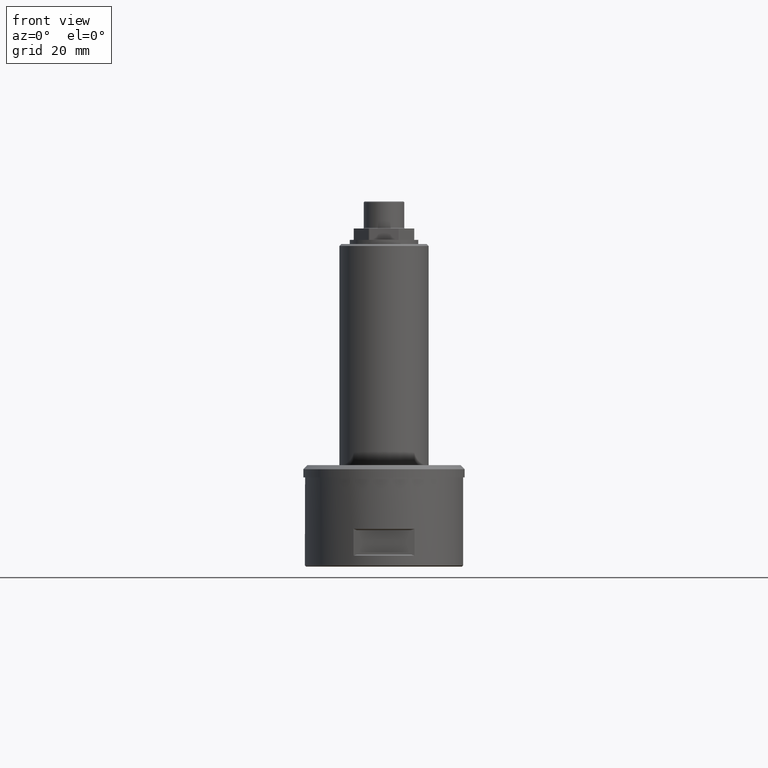
[diagram: clean part render]
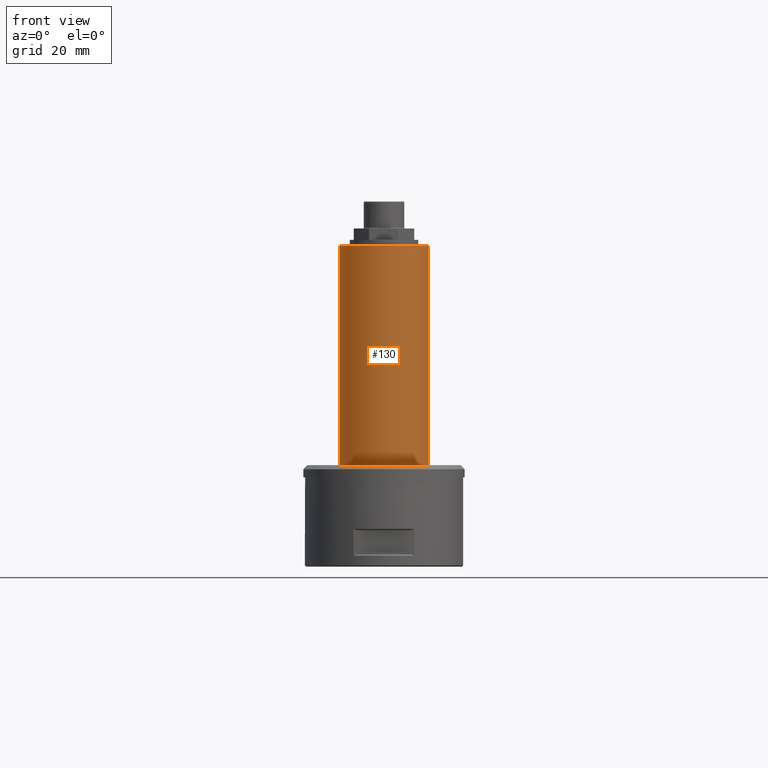
[diagram: same view with one face highlighted and labeled with its STEP entity id]
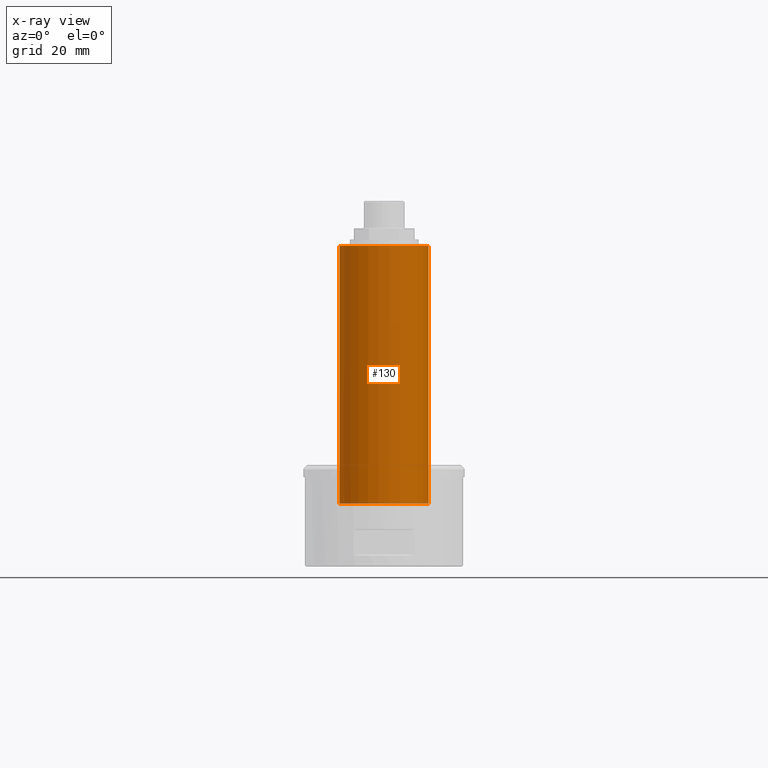
[diagram: x-ray of the same camera — body ghosted, the highlighted face saturated]
A machine part, front view. The second image highlights one B-rep face of the part: STEP entity #130.
The next image is the same camera in x-ray: the body ghosted, the highlighted face saturated — about 0% of this face is hidden behind the body in this view.
In plain terms, the highlighted cylindrical surface (bore or boss wall) has radius 11 mm, axis along (0, 0, 1).
Its self-contained STEP definition (entity closure, byte-faithful):
#50=B_SPLINE_CURVE_WITH_KNOTS('',3,(#1412,#1413,#1414,#1415,#1416,#1417,
#1418,#1419,#1420,#1421,#1422,#1423,#1424,#1425,#1426,#1427,#1428,#1429,
#1430,#1431,#1432,#1433,#1434,#1435,#1436,#1437,#1438,#1439,#1440,#1441,
#1442,#1443,#1444,#1445,#1446,#1447,#1448,#1449,#1450,#1451,#1452,#1453,
#1454,#1455,#1456,#1457,#1458,#1459,#1460,#1461,#1462,#1463,#1464,#1465,
#1466,#1467,#1468,#1469),.UNSPECIFIED.,.T.,.F.,(1,3,3,3,3,3,3,3,3,3,3,3,
3,3,3,3,3,3,3,3,3,1),(-0.0334760659607021,0.,0.0569276184208162,0.11388798171723,
0.170189178404947,0.223994773815214,0.275023318518955,0.32479447673683,
0.375435942673917,0.428444094596675,0.484019015101014,0.541000746772207,
0.597629402742916,0.652691800182208,0.705997861087888,0.758026453272304,
0.809447894307852,0.860920961920237,0.913080990616137,0.966523934039298,
1.,1.05692761842082),.UNSPECIFIED.);
#51=B_SPLINE_CURVE_WITH_KNOTS('',3,(#1471,#1472,#1473,#1474,#1475,#1476,
#1477,#1478,#1479,#1480,#1481,#1482,#1483,#1484,#1485,#1486,#1487,#1488,
#1489,#1490,#1491,#1492,#1493,#1494,#1495,#1496,#1497,#1498,#1499,#1500,
#1501,#1502,#1503,#1504,#1505,#1506,#1507,#1508,#1509,#1510,#1511,#1512,
#1513,#1514,#1515,#1516,#1517,#1518,#1519,#1520,#1521,#1522,#1523,#1524,
#1525,#1526,#1527,#1528),.UNSPECIFIED.,.T.,.F.,(1,3,3,3,3,3,3,3,3,3,3,3,
3,3,3,3,3,3,3,3,3,1),(-0.0368720802815017,0.,0.0557742989657597,0.11163351685579,
0.166177446941804,0.219065034009753,0.270861475775484,0.322242468032284,
0.37385818799038,0.426338903139108,0.480247896041718,0.535857703218907,
0.592750324818179,0.649530104049342,0.704312651862768,0.756186565040042,
0.806141649324129,0.856262775636491,0.908363747585336,0.963127919718498,
1.,1.05577429896576),.UNSPECIFIED.);
#75=CYLINDRICAL_SURFACE('',#973,11.);
#130=ADVANCED_FACE('',(#306,#307,#308,#309),#75,.T.);
#306=FACE_BOUND('',#369,.T.);
#307=FACE_BOUND('',#370,.T.);
#308=FACE_BOUND('',#371,.T.);
#309=FACE_BOUND('',#372,.T.);
#369=EDGE_LOOP('',(#489));
#370=EDGE_LOOP('',(#490));
#371=EDGE_LOOP('',(#491));
#372=EDGE_LOOP('',(#492));
#489=ORIENTED_EDGE('',*,*,#808,.T.);
#490=ORIENTED_EDGE('',*,*,#809,.T.);
#491=ORIENTED_EDGE('',*,*,#810,.F.);
#492=ORIENTED_EDGE('',*,*,#811,.F.);
#715=VERTEX_POINT('',#1409);
#716=VERTEX_POINT('',#1411);
#717=VERTEX_POINT('',#1470);
#718=VERTEX_POINT('',#1529);
#808=EDGE_CURVE('',#715,#715,#910,.T.);
#809=EDGE_CURVE('',#716,#716,#911,.T.);
#810=EDGE_CURVE('',#717,#717,#50,.T.);
#811=EDGE_CURVE('',#718,#718,#51,.T.);
#910=CIRCLE('',#971,11.);
#911=CIRCLE('',#972,11.0000000000001);
#971=AXIS2_PLACEMENT_3D('',#1408,#1124,#1125);
#972=AXIS2_PLACEMENT_3D('',#1410,#1126,#1127);
#973=AXIS2_PLACEMENT_3D('',#1530,#1128,#1129);
#1124=DIRECTION('',(0.,0.,-1.));
#1125=DIRECTION('',(-1.,0.,0.));
#1126=DIRECTION('',(0.,0.,1.));
#1127=DIRECTION('',(1.,0.,0.));
#1128=DIRECTION('',(0.,0.,1.));
#1129=DIRECTION('',(1.,0.,0.));
#1408=CARTESIAN_POINT('',(0.,0.,79.));
#1409=CARTESIAN_POINT('',(-11.,0.,79.));
#1410=CARTESIAN_POINT('',(0.,0.,15.5));
#1411=CARTESIAN_POINT('',(11.0000000000001,0.,15.5));
#1412=CARTESIAN_POINT('',(-2.99999999999991,10.5830052442584,17.8999999999996));
#1413=CARTESIAN_POINT('',(-3.06981681712979,10.5632140368882,17.8999999999996));
#1414=CARTESIAN_POINT('',(-3.14038450659972,10.5424227737473,17.9124970988472));
#1415=CARTESIAN_POINT('',(-3.20591448775793,10.5224575217571,17.9364405765748));
#1416=CARTESIAN_POINT('',(-3.27146261720385,10.5024867404637,17.9603906853607));
#1417=CARTESIAN_POINT('',(-3.33382981085157,10.4827847092571,17.9964888354275));
#1418=CARTESIAN_POINT('',(-3.3876192775582,10.4653731720525,18.0420138695711));
#1419=CARTESIAN_POINT('',(-3.44075567997196,10.4481730303855,18.0869861788774));
#1420=CARTESIAN_POINT('',(-3.48705359081985,10.43272799059,18.1425344552966));
#1421=CARTESIAN_POINT('',(-3.5219399223933,10.4209375385832,18.2040629840455));
#1422=CARTESIAN_POINT('',(-3.55529059017035,10.4096660912832,18.262883084313));
#1423=CARTESIAN_POINT('',(-3.57915482046363,10.4014329403698,18.3289382027011));
#1424=CARTESIAN_POINT('',(-3.59097724228668,10.39734977989,18.3963375714194));
#1425=CARTESIAN_POINT('',(-3.60220237963041,10.39347290611,18.4603318343604));
#1426=CARTESIAN_POINT('',(-3.60289005001189,10.3932330618097,18.5273519849324));
#1427=CARTESIAN_POINT('',(-3.59296868398482,10.396661773661,18.5915867884212));
#1428=CARTESIAN_POINT('',(-3.58328137018419,10.4000095997109,18.6543062462681));
#1429=CARTESIAN_POINT('',(-3.56326033680526,10.4069246310301,18.716062895263));
#1430=CARTESIAN_POINT('',(-3.53478046430455,10.4165890323642,18.7720475234187));
#1431=CARTESIAN_POINT('',(-3.5057920601981,10.4264259995527,18.8290318032705));
#1432=CARTESIAN_POINT('',(-3.46732907570817,10.4393411650476,18.8815408372879));
#1433=CARTESIAN_POINT('',(-3.42260264746866,10.453984461321,18.9259190091467));
#1434=CARTESIAN_POINT('',(-3.37580324197967,10.4693064440271,18.9723540172935));
#1435=CARTESIAN_POINT('',(-3.32095149567916,10.4868989700489,19.0111162295878));
#1436=CARTESIAN_POINT('',(-3.26232257871943,10.5051059676891,19.0396173317213));
#1437=CARTESIAN_POINT('',(-3.20090536269367,10.524178861497,19.0694739014394));
#1438=CARTESIAN_POINT('',(-3.1336983167243,10.5444253513799,19.088868258931));
#1439=CARTESIAN_POINT('',(-3.06598618430007,10.564077277154,19.0963604811534));
#1440=CARTESIAN_POINT('',(-2.99661772046592,10.5842099159223,19.1040359733831));
#1441=CARTESIAN_POINT('',(-2.92478068762943,10.6042751642352,19.0994009585023));
#1442=CARTESIAN_POINT('',(-2.85653800704422,10.622626352005,19.0825964783426));
#1443=CARTESIAN_POINT('',(-2.78874380432905,10.6408569392719,19.0659024340187));
#1444=CARTESIAN_POINT('',(-2.72256330115455,10.6579214838166,19.0366771898524));
#1445=CARTESIAN_POINT('',(-2.66401663073763,10.6725355652325,18.9971068050018));
#1446=CARTESIAN_POINT('',(-2.60707805025483,10.6867482445354,18.9586232921649));
#1447=CARTESIAN_POINT('',(-2.55573615457011,10.6990643438209,18.9092216508164));
#1448=CARTESIAN_POINT('',(-2.51483547133773,10.7086695042896,18.8530090368927));
#1449=CARTESIAN_POINT('',(-2.47521965706406,10.7179729247492,18.798562306495));
#1450=CARTESIAN_POINT('',(-2.44427888225215,10.725012553923,18.7361680065076));
#1451=CARTESIAN_POINT('',(-2.42492917387903,10.7293857467084,18.6711535712293));
#1452=CARTESIAN_POINT('',(-2.40603383409633,10.733656248466,18.6076658006813));
#1453=CARTESIAN_POINT('',(-2.39766002012662,10.7355128144675,18.5399010011442));
#1454=CARTESIAN_POINT('',(-2.40058147454186,10.7348595046273,18.4735910746605));
#1455=CARTESIAN_POINT('',(-2.40346989220308,10.7342135826266,18.4080310023314));
#1456=CARTESIAN_POINT('',(-2.41746976120564,10.7310967887802,18.3420888473413));
#1457=CARTESIAN_POINT('',(-2.44132064172829,10.725667975668,18.2811910087746));
#1458=CARTESIAN_POINT('',(-2.46520089217958,10.7202324775258,18.2202181807259));
#1459=CARTESIAN_POINT('',(-2.49958709380877,10.712325527574,18.162649352121));
#1460=CARTESIAN_POINT('',(-2.5414784747202,10.7023776406242,18.1130141981221));
#1461=CARTESIAN_POINT('',(-2.58393260100764,10.6922961193263,18.0627122732317));
#1462=CARTESIAN_POINT('',(-2.63520668837192,10.6798406558194,18.0192069291159));
#1463=CARTESIAN_POINT('',(-2.69099725920307,10.6657645647633,17.9856875403221));
#1464=CARTESIAN_POINT('',(-2.74815439445356,10.6513436863191,17.9513471094883));
#1465=CARTESIAN_POINT('',(-2.81154660528336,10.63483306504,17.9265595067595));
#1466=CARTESIAN_POINT('',(-2.87606909114748,10.6173549711284,17.912938563836));
#1467=CARTESIAN_POINT('',(-2.9168172067377,10.6063169681522,17.9043364811781));
#1468=CARTESIAN_POINT('',(-2.95854912963758,10.5947554615376,17.9));
#1469=CARTESIAN_POINT('',(-2.99999999999991,10.5830052442584,17.8999999999996));
#1470=CARTESIAN_POINT('',(-2.99999999999991,10.5830052442584,17.8999999999996));
#1471=CARTESIAN_POINT('',(3.,10.5830052442584,17.9));
#1472=CARTESIAN_POINT('',(2.93157776268094,10.6024011254112,17.9));
#1473=CARTESIAN_POINT('',(2.86200103123959,10.6213682036753,17.9120184260052));
#1474=CARTESIAN_POINT('',(2.79703438724802,10.6384490710137,17.9353718391364));
#1475=CARTESIAN_POINT('',(2.7320103370553,10.6555450314467,17.9587458879455));
#1476=CARTESIAN_POINT('',(2.66978703597953,10.6712370364003,17.9941809411905));
#1477=CARTESIAN_POINT('',(2.61603314063602,10.6843984672556,18.0389474532007));
#1478=CARTESIAN_POINT('',(2.56353945073258,10.6972513417419,18.0826644598382));
#1479=CARTESIAN_POINT('',(2.51763653283456,10.7080714805244,18.1365556317496));
#1480=CARTESIAN_POINT('',(2.48266645677231,10.716173163234,18.1960822396577));
#1481=CARTESIAN_POINT('',(2.44874076668953,10.7240328881105,18.253831077492));
#1482=CARTESIAN_POINT('',(2.42414752977925,10.7295705886034,18.3185251548311));
#1483=CARTESIAN_POINT('',(2.41119404172678,10.7324807613683,18.3846416734607));
#1484=CARTESIAN_POINT('',(2.39850192828665,10.7353322128625,18.4494240974158));
#1485=CARTESIAN_POINT('',(2.39662628451943,10.7357472804405,18.5173773051816));
#1486=CARTESIAN_POINT('',(2.40573921106562,10.7337048053476,18.5827895810781));
#1487=CARTESIAN_POINT('',(2.41478198245278,10.7316780540909,18.6476982856363));
#1488=CARTESIAN_POINT('',(2.43488137661748,10.7271739203114,18.7118830111512));
#1489=CARTESIAN_POINT('',(2.46424264963384,10.720424812652,18.7701186064096));
#1490=CARTESIAN_POINT('',(2.49374362150502,10.7136435932171,18.8286312825003));
#1491=CARTESIAN_POINT('',(2.53337223225895,10.7044054890208,18.8827187066261));
#1492=CARTESIAN_POINT('',(2.57970577353719,10.6932276755888,18.9281971078861));
#1493=CARTESIAN_POINT('',(2.62681766353679,10.6818620881047,18.9744394925261));
#1494=CARTESIAN_POINT('',(2.68209331660847,10.6681802021503,19.0130234750021));
#1495=CARTESIAN_POINT('',(2.74094962383965,10.6530368984423,19.0411958080133));
#1496=CARTESIAN_POINT('',(2.80139777059471,10.6374840258962,19.0701300956099));
#1497=CARTESIAN_POINT('',(2.86720740483468,10.6199717562029,19.0888688729684));
#1498=CARTESIAN_POINT('',(2.9331298174092,10.6017333240478,19.0962620050618));
#1499=CARTESIAN_POINT('',(3.00110249062967,10.5829276562859,19.1038850718191));
#1500=CARTESIAN_POINT('',(3.07101520825842,10.5628431015272,19.0996660215352));
#1501=CARTESIAN_POINT('',(3.13734201604683,10.5431060449161,19.0840694912664));
#1502=CARTESIAN_POINT('',(3.20515211535748,10.5229276010331,19.0681241698844));
#1503=CARTESIAN_POINT('',(3.27110094765836,10.5025556331557,19.0398313705543));
#1504=CARTESIAN_POINT('',(3.32966917555234,10.4839545583418,19.0013165015144));
#1505=CARTESIAN_POINT('',(3.38808231784845,10.4654027381991,18.9629036178292));
#1506=CARTESIAN_POINT('',(3.44083466313042,10.4480920325361,18.9131574544189));
#1507=CARTESIAN_POINT('',(3.48293890100079,10.4340374070585,18.856047774744));
#1508=CARTESIAN_POINT('',(3.52356128335022,10.4204774330794,18.8009480659986));
#1509=CARTESIAN_POINT('',(3.5554329947202,10.4095789033144,18.7373143127868));
#1510=CARTESIAN_POINT('',(3.57519634981804,10.4027866968542,18.6707312483291));
#1511=CARTESIAN_POINT('',(3.59392805482079,10.3963490445882,18.607623829805));
#1512=CARTESIAN_POINT('',(3.60230450416012,10.3934311697856,18.5400395213616));
#1513=CARTESIAN_POINT('',(3.59943494783162,10.3944248545231,18.4739664962385));
#1514=CARTESIAN_POINT('',(3.59666819628346,10.3953829394921,18.4102606045871));
#1515=CARTESIAN_POINT('',(3.58340256704312,10.3999899088048,18.3462165570747));
#1516=CARTESIAN_POINT('',(3.56093147871386,10.4076782715409,18.2870308092989));
#1517=CARTESIAN_POINT('',(3.53837143034079,10.4153970714804,18.2276107530358));
#1518=CARTESIAN_POINT('',(3.50598754922911,10.4263979969205,18.1715115377314));
#1519=CARTESIAN_POINT('',(3.46658353146951,10.4394826796803,18.1227735319978));
#1520=CARTESIAN_POINT('',(3.42562877353259,10.4530823084891,18.0721174481607));
#1521=CARTESIAN_POINT('',(3.37605989462457,10.4692625828207,18.028076465855));
#1522=CARTESIAN_POINT('',(3.32180101851201,10.4864502093612,17.9935968952656));
#1523=CARTESIAN_POINT('',(3.26480921141747,10.5045035485822,17.9573806450128));
#1524=CARTESIAN_POINT('',(3.20114202724131,10.5241315372946,17.9307467899791));
#1525=CARTESIAN_POINT('',(3.1357461621129,10.5435807962378,17.9155575481952));
#1526=CARTESIAN_POINT('',(3.091395887525,10.5567709264236,17.905256483402));
#1527=CARTESIAN_POINT('',(3.04560595623492,10.5700771708475,17.9));
#1528=CARTESIAN_POINT('',(3.,10.5830052442584,17.9));
#1529=CARTESIAN_POINT('',(3.,10.5830052442584,17.9));
#1530=CARTESIAN_POINT('',(0.,0.,0.));